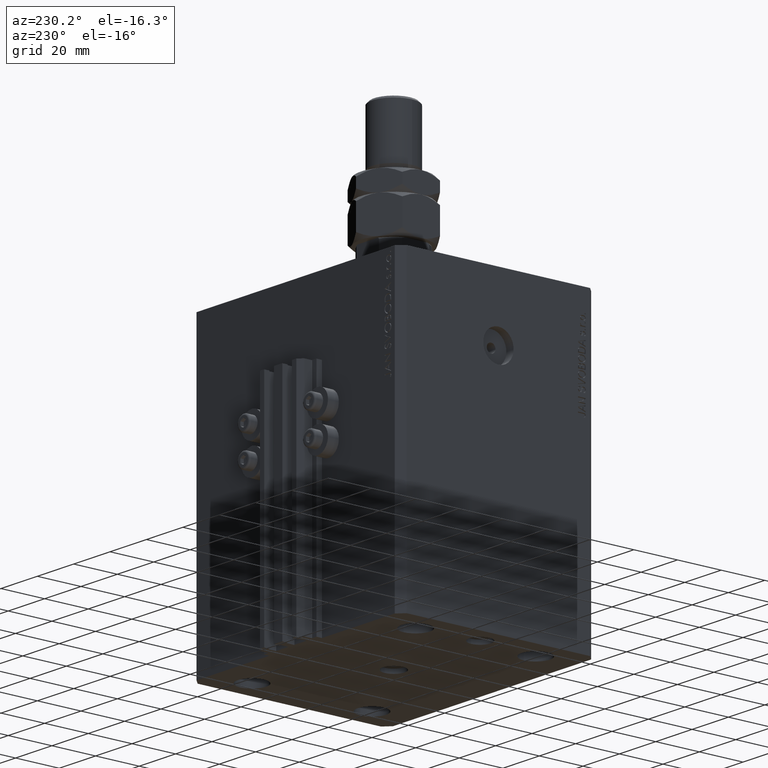
[diagram: clean part render]
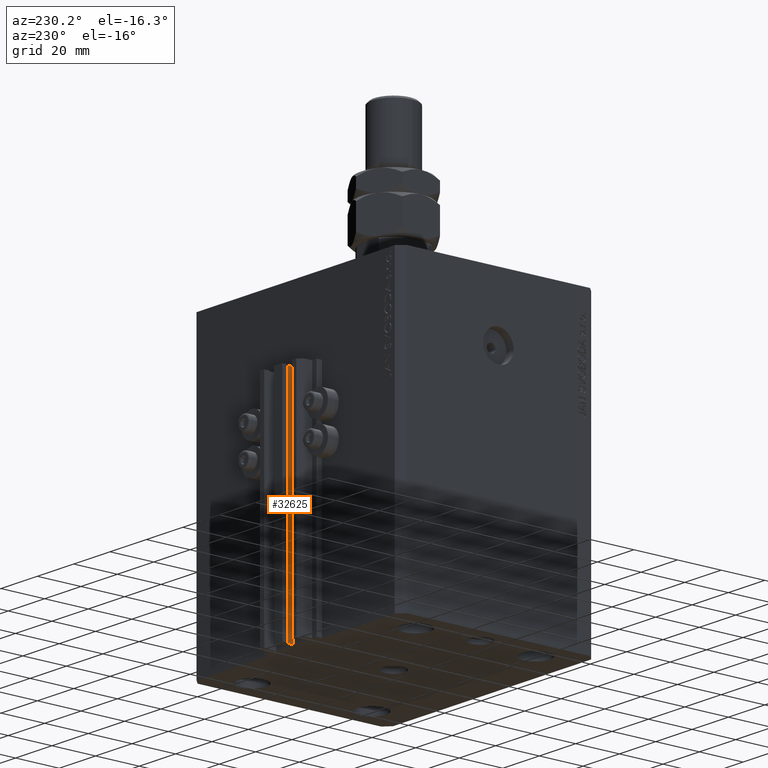
[diagram: same view with one face highlighted and labeled with its STEP entity id]
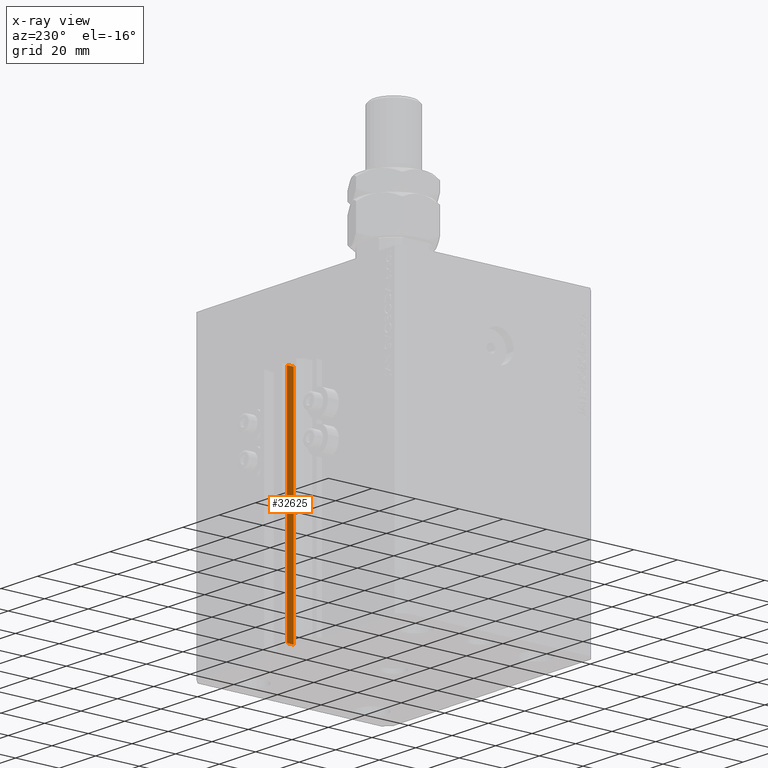
[diagram: x-ray of the same camera — body ghosted, the highlighted face saturated]
A machine part, auxiliary view. The second image highlights one B-rep face of the part: STEP entity #32625.
The next image is the same camera in x-ray: the body ghosted, the highlighted face saturated — about 0% of this face is hidden behind the body in this view.
In plain terms, the highlighted planar face has unit normal (-1, 0, 0).
Its self-contained STEP definition (entity closure, byte-faithful):
#322 = PLANE ( 'NONE',  #43856 ) ;
#1629 = VERTEX_POINT ( 'NONE', #27945 ) ;
#2091 = VERTEX_POINT ( 'NONE', #2587 ) ;
#2587 = CARTESIAN_POINT ( 'NONE',  ( -1.599999999999997868, 50.39999999999999858, -33.00000000000000000 ) ) ;
#2884 = LINE ( 'NONE', #43719, #9134 ) ;
#6238 = DIRECTION ( 'NONE',  ( -6.776263578034385456E-17, -1.000000000000000000, 0.000000000000000000 ) ) ;
#6783 = DIRECTION ( 'NONE',  ( 0.000000000000000000, 0.000000000000000000, 1.000000000000000000 ) ) ;
#7401 = VERTEX_POINT ( 'NONE', #9139 ) ;
#9134 = VECTOR ( 'NONE', #32363, 1000.000000000000000 ) ;
#9139 = CARTESIAN_POINT ( 'NONE',  ( -1.600000000000000755, 47.19999999999998863, -135.0000000000000000 ) ) ;
#14176 = LINE ( 'NONE', #36698, #46538 ) ;
#15671 = FACE_OUTER_BOUND ( 'NONE', #41125, .T. ) ;
#15921 = DIRECTION ( 'NONE',  ( -1.000000000000000000, 6.776263578034385456E-17, 0.000000000000000000 ) ) ;
#16238 = CARTESIAN_POINT ( 'NONE',  ( -1.600000000000000755, 47.19999999999998863, -33.00000000000000000 ) ) ;
#17009 = CARTESIAN_POINT ( 'NONE',  ( -1.600000000000000533, 50.39999999999999858, -33.00000000000000000 ) ) ;
#20057 = ORIENTED_EDGE ( 'NONE', *, *, #42573, .F. ) ;
#21554 = CARTESIAN_POINT ( 'NONE',  ( -1.600000000000000533, 50.39999999999999858, -135.0000000000000000 ) ) ;
#23342 = CARTESIAN_POINT ( 'NONE',  ( -1.600000000000000533, 50.39999999999999858, -135.0000000000000000 ) ) ;
#24696 = DIRECTION ( 'NONE',  ( -6.776263578034385456E-17, -1.000000000000000000, 0.000000000000000000 ) ) ;
#27550 = ORIENTED_EDGE ( 'NONE', *, *, #33366, .T. ) ;
#27945 = CARTESIAN_POINT ( 'NONE',  ( -1.599999999999997868, 50.39999999999999858, -135.0000000000000000 ) ) ;
#30431 = EDGE_CURVE ( 'NONE', #2091, #48808, #43472, .T. ) ;
#32363 = DIRECTION ( 'NONE',  ( 0.000000000000000000, 0.000000000000000000, 1.000000000000000000 ) ) ;
#32625 = ADVANCED_FACE ( 'NONE', ( #15671 ), #322, .T. ) ;
#33366 = EDGE_CURVE ( 'NONE', #7401, #48808, #2884, .T. ) ;
#33692 = VECTOR ( 'NONE', #24696, 1000.000000000000000 ) ;
#34736 = DIRECTION ( 'NONE',  ( -6.776263578034385456E-17, -1.000000000000000000, 0.000000000000000000 ) ) ;
#35529 = VECTOR ( 'NONE', #6238, 1000.000000000000000 ) ;
#36438 = ORIENTED_EDGE ( 'NONE', *, *, #30431, .F. ) ;
#36698 = CARTESIAN_POINT ( 'NONE',  ( -1.599999999999997868, 50.39999999999999858, -135.0000000000000000 ) ) ;
#37185 = ORIENTED_EDGE ( 'NONE', *, *, #43652, .T. ) ;
#41125 = EDGE_LOOP ( 'NONE', ( #36438, #20057, #37185, #27550 ) ) ;
#42573 = EDGE_CURVE ( 'NONE', #1629, #2091, #14176, .T. ) ;
#43472 = LINE ( 'NONE', #17009, #33692 ) ;
#43652 = EDGE_CURVE ( 'NONE', #1629, #7401, #44793, .T. ) ;
#43719 = CARTESIAN_POINT ( 'NONE',  ( -1.600000000000000755, 47.19999999999998863, -135.0000000000000000 ) ) ;
#43856 = AXIS2_PLACEMENT_3D ( 'NONE', #23342, #15921, #34736 ) ;
#44793 = LINE ( 'NONE', #21554, #35529 ) ;
#46538 = VECTOR ( 'NONE', #6783, 1000.000000000000000 ) ;
#48808 = VERTEX_POINT ( 'NONE', #16238 ) ;